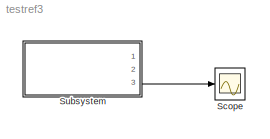
MODEL testref3
KIND model
CONFIG AbsTol = auto
CONFIG FixedStep = .0005
CONFIG MaxStep = auto
CONFIG MinStep = auto
CONFIG RelTol = 1e-3
CONFIG Solver = FixedStepDiscrete
CONFIG SolverMode = Auto
CONFIG StartTime = 0.0
CONFIG StopTime = 60
BLOCK [Scope] Scope
  DataFormat = StructureWithTime
  Decimation = 1
  Floating = off
  Grid = on
  LimitDataPoints = on
  MaxDataPoints = 5000
  NumInputPorts = 1
  Ports = [1]
  SampleInput = off
  SampleTime = 0
  SaveName = ScopeData
  SaveToWorkspace = off
  TickLabels = OneTimeTick
  TimeRange = 60
  YMax = 1
  YMin = -1.1
  ZoomMode = on
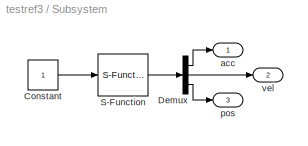
BLOCK [SubSystem] Subsystem
  MaskDisplay = disp('Ref3');\n
  MaskIconFrame = off
  MaskIconOpaque = off
  MaskIconRotate = none
  MaskIconUnits = autoscale
  MaskType = Ref3
  OpenFcn = r3g_main
  Ports = [0, 3]
  RTWFcnNameOpts = Auto
  RTWFileNameOpts = Auto
  RTWSystemCode = Auto
  ShowPortLabels = on
  TreatAsAtomicUnit = off
BLOCK [Constant] Subsystem/Constant
  Value = 1
  VectorParams1D = on
BLOCK [Demux] Subsystem/Demux
  BusSelectionMode = off
  Outputs = 3
  Ports = [1, 3]
BLOCK [S-Function] Subsystem/S-Function
  FunctionName = ref3
  OpenFcn = global ref_part; r3g_main
  Parameters = ref_part
  PortCounts = []
  Ports = [1, 1]
  SFunctionModules = ''
BLOCK [Outport] Subsystem/acc
  InitialOutput = []
  OutputWhenDisabled = held
  Port = 1
BLOCK [Outport] Subsystem/pos
  InitialOutput = []
  OutputWhenDisabled = held
  Port = 3
BLOCK [Outport] Subsystem/vel
  InitialOutput = []
  OutputWhenDisabled = held
  Port = 2
LINE Subsystem/Constant:1 -> Subsystem/S-Function:1
LINE Subsystem/Demux:1 -> Subsystem/acc:1
LINE Subsystem/Demux:2 -> Subsystem/vel:1
LINE Subsystem/Demux:3 -> Subsystem/pos:1
LINE Subsystem/S-Function:1 -> Subsystem/Demux:1
LINE Subsystem:3 -> Scope:1
